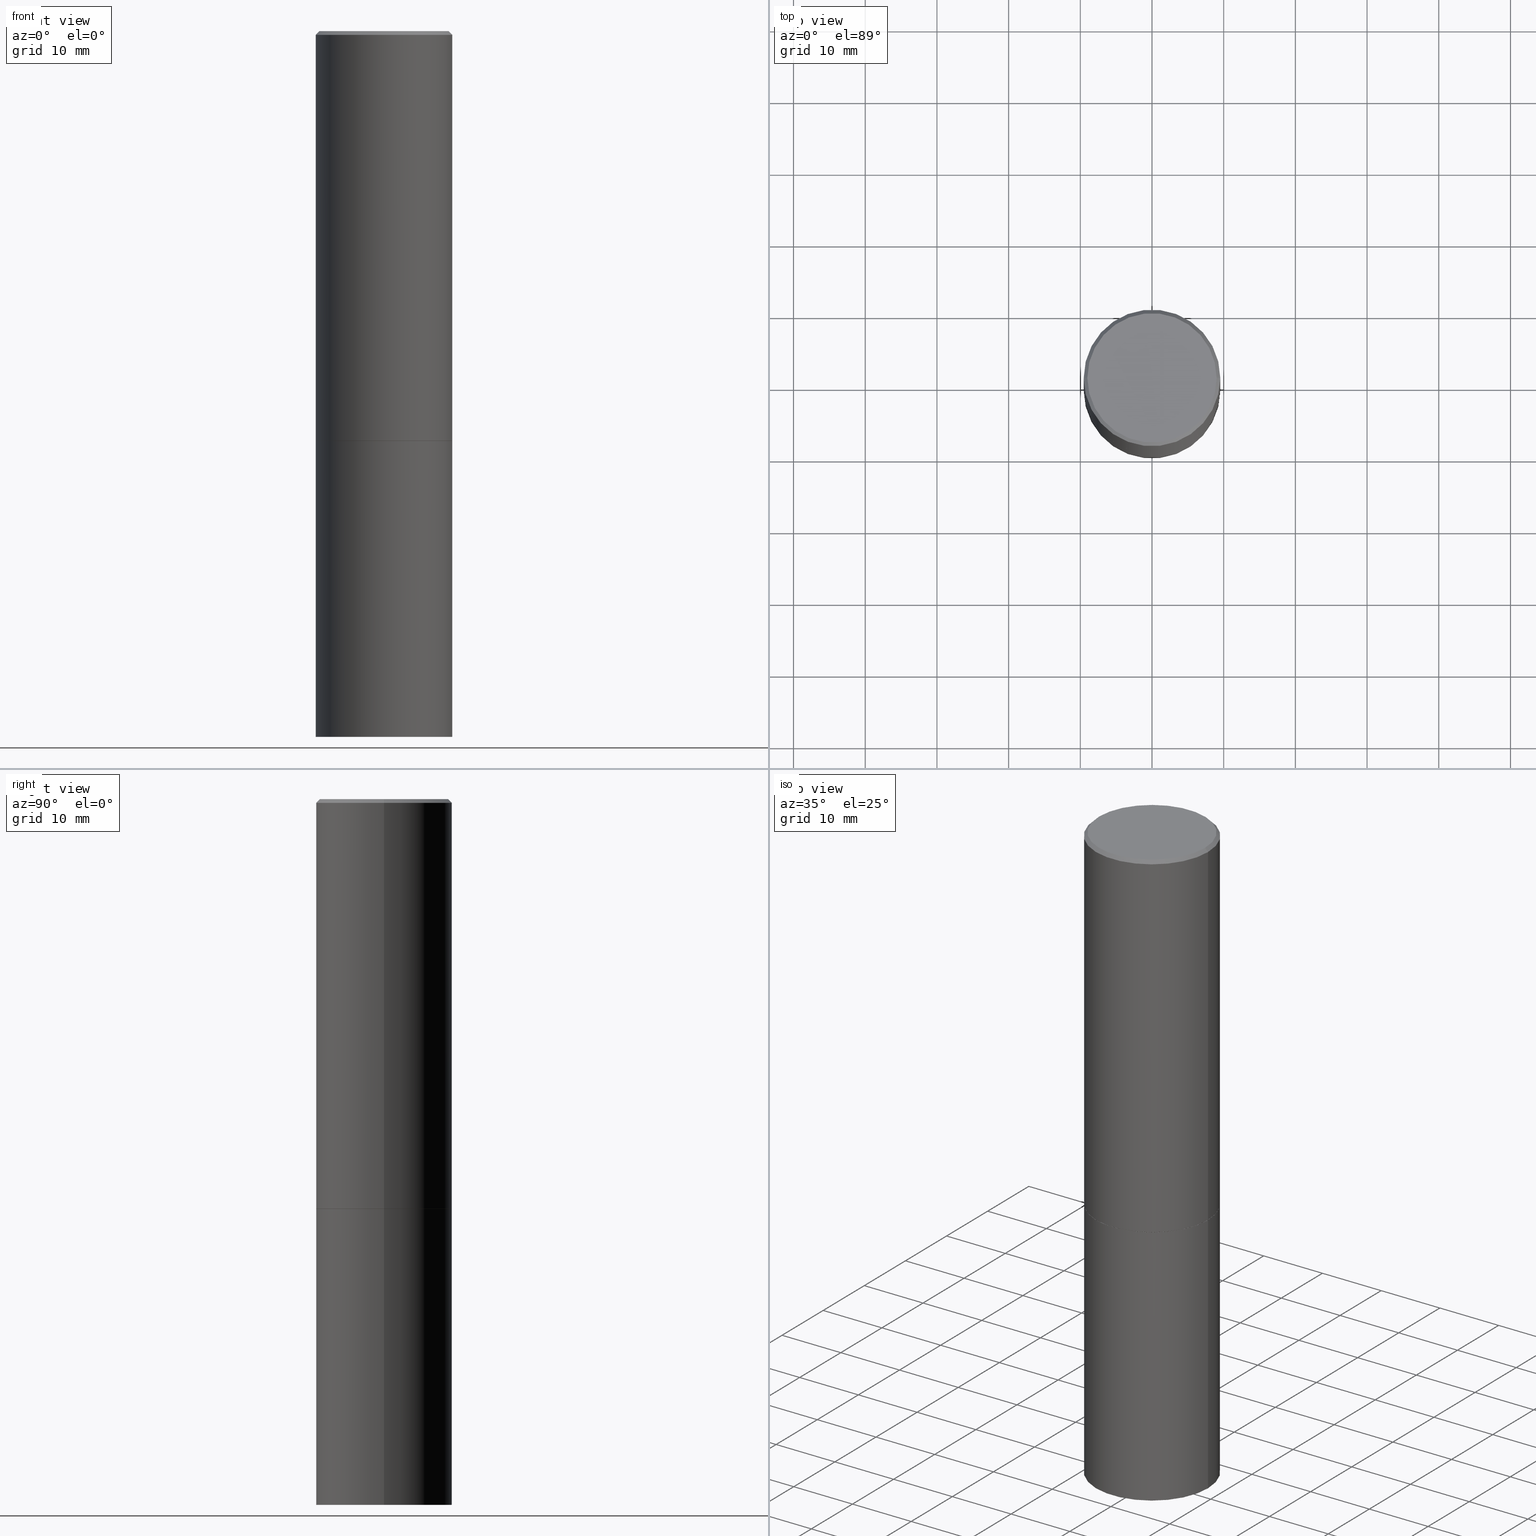
[diagram: canonical four-view strip — front | top / right | iso, engineering-drawing reading convention]
A machine part, canonical four-view strip (front | top / right | iso — engineering-drawing reading convention). The complete STEP part file that produces these views, byte-faithful:
ISO-10303-21;
HEADER;
FILE_DESCRIPTION (( 'STEP AP203' ),
    '1' );
FILE_NAME ('34525.STEP',
    '2024-02-27T16:16:03',
    ( '' ),
    ( '' ),
    'SwSTEP 2.0',
    'SolidWorks 2023',
    '' );
FILE_SCHEMA (( 'CONFIG_CONTROL_DESIGN' ));
ENDSEC;

DATA;
#1 = ADVANCED_FACE ( 'NONE', ( #127 ), #121, .T. ) ;
#2 = CC_DESIGN_SECURITY_CLASSIFICATION ( #339, ( #114 ) ) ;
#3 = ORIENTED_EDGE ( 'NONE', *, *, #103, .F. ) ;
#4 = AXIS2_PLACEMENT_3D ( 'NONE', #333, #85, #349 ) ;
#5 = DATE_TIME_ROLE ( 'classification_date' ) ;
#6 = VECTOR ( 'NONE', #130, 39.37007874015748143 ) ;
#7 = COORDINATED_UNIVERSAL_TIME_OFFSET ( 5, 0, .BEHIND. ) ;
#8 = VERTEX_POINT ( 'NONE', #70 ) ;
#9 = EDGE_LOOP ( 'NONE', ( #293, #274 ) ) ;
#10 = AXIS2_PLACEMENT_3D ( 'NONE', #60, #88, #236 ) ;
#11 = CIRCLE ( 'NONE', #139, 0.3739999999999999991 ) ;
#12 = ORIENTED_EDGE ( 'NONE', *, *, #192, .F. ) ;
#13 = APPROVAL_DATE_TIME ( #273, #359 ) ;
#14 = DIRECTION ( 'NONE',  ( -2.445468806185136597E-29, 3.491481338843145583E-15, 1.000000000000000000 ) ) ;
#15 =( CONVERSION_BASED_UNIT ( 'INCH', #302 ) LENGTH_UNIT ( ) NAMED_UNIT ( #97 ) );
#16 = EDGE_CURVE ( 'NONE', #317, #186, #321, .T. ) ;
#17 = APPROVAL_PERSON_ORGANIZATION ( #104, #311, #299 ) ;
#18 = DIRECTION ( 'NONE',  ( 0.7071067811865457964, -7.319954787623249734E-15, -0.7071067811865492381 ) ) ;
#19 = CARTESIAN_POINT ( 'NONE',  ( 0.000000000000000000, 0.000000000000000000, 0.000000000000000000 ) ) ;
#20 = PERSON_AND_ORGANIZATION_ROLE ( 'classification_officer' ) ;
#21 = ADVANCED_FACE ( 'NONE', ( #74 ), #46, .T. ) ;
#22 = LINE ( 'NONE', #53, #312 ) ;
#23 = DATE_AND_TIME ( #24, #34 ) ;
#24 = CALENDAR_DATE ( 2024, 27, 2 ) ;
#25 = AXIS2_PLACEMENT_3D ( 'NONE', #64, #227, #197 ) ;
#26 = DIRECTION ( 'NONE',  ( -2.445468806185136877E-29, 3.491481338843145188E-15, 1.000000000000000000 ) ) ;
#27 = CARTESIAN_POINT ( 'NONE',  ( -0.3749999999999997780, 2.548781377355484746E-15, -0.02000000000000008715 ) ) ;
#28 = CIRCLE ( 'NONE', #310, 0.3739999999999999991 ) ;
#29 = CARTESIAN_POINT ( 'NONE',  ( 5.502304813916557343E-29, -7.855833012397078448E-15, -2.250000000000000000 ) ) ;
#30 = DIRECTION ( 'NONE',  ( -2.445468806185136597E-29, 3.491481338843145583E-15, 1.000000000000000000 ) ) ;
#31 = CALENDAR_DATE ( 2024, 27, 2 ) ;
#32 = ADVANCED_BREP_SHAPE_REPRESENTATION ( '34525', ( #162, #35, #10 ), #107 ) ;
#33 = VECTOR ( 'NONE', #328, 39.37007874015748854 ) ;
#34 = LOCAL_TIME ( 11, 16, 3.000000000000000000, #332 ) ;
#35 = MANIFOLD_SOLID_BREP ( 'Body-Move/Copy2[2]', #45 ) ;
#36 = DIRECTION ( 'NONE',  ( 1.000000000000000000, -6.982962677686265922E-15, 0.000000000000000000 ) ) ;
#37 = DATE_TIME_ROLE ( 'creation_date' ) ;
#38 = DIRECTION ( 'NONE',  ( -2.445468806185136597E-29, 3.491481338843145583E-15, 1.000000000000000000 ) ) ;
#39 = CC_DESIGN_PERSON_AND_ORGANIZATION_ASSIGNMENT ( #54, #20, ( #339 ) ) ;
#40 = ORIENTED_EDGE ( 'NONE', *, *, #50, .T. ) ;
#41 = CARTESIAN_POINT ( 'NONE',  ( -0.3750000000000000555, -8.028126341106757280E-15, -2.250000000000000000 ) ) ;
#42 = ORIENTED_EDGE ( 'NONE', *, *, #308, .F. ) ;
#43 = VECTOR ( 'NONE', #364, 39.37007874015748854 ) ;
#44 = CIRCLE ( 'NONE', #171, 0.3549999999999997602 ) ;
#45 = CLOSED_SHELL ( 'NONE', ( #272, #283, #63, #118, #229, #1, #276, #78 ) ) ;
#46 = CYLINDRICAL_SURFACE ( 'NONE', #322, 0.3750000000000000555 ) ;
#47 = FACE_OUTER_BOUND ( 'NONE', #9, .T. ) ;
#48 = DIRECTION ( 'NONE',  ( -2.445468806185136597E-29, 3.491481338843145583E-15, 1.000000000000000000 ) ) ;
#49 = ORIENTED_EDGE ( 'NONE', *, *, #84, .F. ) ;
#50 = EDGE_CURVE ( 'NONE', #242, #8, #96, .T. ) ;
#51 = DIRECTION ( 'NONE',  ( 1.000000000000000000, -6.982962677686266711E-15, 4.876231632511991546E-29 ) ) ;
#52 = ORGANIZATION ( 'UNSPECIFIED', 'UNSPECIFIED', '' ) ;
#53 = CARTESIAN_POINT ( 'NONE',  ( 0.3749999999999997780, -2.642516375941186056E-15, -0.02000000000000008715 ) ) ;
#54 = PERSON_AND_ORGANIZATION ( #109, #52 ) ;
#55 = DIRECTION ( 'NONE',  ( -1.000000000000000000, 6.982962677686265922E-15, 0.000000000000000000 ) ) ;
#56 = CARTESIAN_POINT ( 'NONE',  ( 5.499859345110371740E-29, -7.852341531058233864E-15, -2.249000000000000110 ) ) ;
#57 = FACE_OUTER_BOUND ( 'NONE', #98, .T. ) ;
#58 = CARTESIAN_POINT ( 'NONE',  ( 0.3750000000000000555, -1.614810119214954068E-14, -3.875000000000000000 ) ) ;
#59 = APPROVAL_STATUS ( 'not_yet_approved' ) ;
#60 = CARTESIAN_POINT ( 'NONE',  ( 0.000000000000000000, 0.000000000000000000, 0.000000000000000000 ) ) ;
#61 = CARTESIAN_POINT ( 'NONE',  ( 5.499859345110371740E-29, -7.852341531058233864E-15, -2.249000000000000110 ) ) ;
#62 = AXIS2_PLACEMENT_3D ( 'NONE', #29, #169, #260 ) ;
#63 = ADVANCED_FACE ( 'NONE', ( #57 ), #137, .T. ) ;
#64 = CARTESIAN_POINT ( 'NONE',  ( 9.476191623967404313E-29, -1.352949018801718908E-14, -3.875000000000000000 ) ) ;
#65 = APPLICATION_PROTOCOL_DEFINITION ( 'international standard', 'config_control_design', 1994, #336 ) ;
#66 = ORIENTED_EDGE ( 'NONE', *, *, #163, .F. ) ;
#67 = CC_DESIGN_PERSON_AND_ORGANIZATION_ASSIGNMENT ( #149, #95, ( #114 ) ) ;
#68 = CC_DESIGN_APPROVAL ( #311, ( #339 ) ) ;
#69 = CYLINDRICAL_SURFACE ( 'NONE', #210, 0.3749999999999998890 ) ;
#70 = CARTESIAN_POINT ( 'NONE',  ( 0.3750000000000000555, -1.047444401652942689E-14, -2.250000000000000000 ) ) ;
#71 = CARTESIAN_POINT ( 'NONE',  ( 9.476191623967404313E-29, -1.352949018801718908E-14, -3.875000000000000000 ) ) ;
#72 = PERSON_AND_ORGANIZATION_ROLE ( 'design_owner' ) ;
#73 = PERSON_AND_ORGANIZATION_ROLE ( 'design_supplier' ) ;
#74 = FACE_OUTER_BOUND ( 'NONE', #354, .T. ) ;
#75 = ORIENTED_EDGE ( 'NONE', *, *, #174, .F. ) ;
#76 = DIRECTION ( 'NONE',  ( 1.000000000000000000, -6.982962677686265922E-15, 4.876176775795935793E-29 ) ) ;
#77 = CARTESIAN_POINT ( 'NONE',  ( 0.3750000000000000555, -1.047095253519058546E-14, -2.249000000000000110 ) ) ;
#78 = ADVANCED_FACE ( 'NONE', ( #80 ), #279, .F. ) ;
#79 = VECTOR ( 'NONE', #193, 39.37007874015748143 ) ;
#80 = FACE_OUTER_BOUND ( 'NONE', #291, .T. ) ;
#81 = FACE_OUTER_BOUND ( 'NONE', #145, .T. ) ;
#82 = PRODUCT ( '34525', '34525', '', ( #264 ) ) ;
#83 = LINE ( 'NONE', #257, #43 ) ;
#84 = EDGE_CURVE ( 'NONE', #209, #315, #168, .T. ) ;
#85 = DIRECTION ( 'NONE',  ( -2.438088387897960049E-29, 3.491481338843145188E-15, 1.000000000000000000 ) ) ;
#86 = ORIENTED_EDGE ( 'NONE', *, *, #151, .F. ) ;
#87 = DESIGN_CONTEXT ( 'detailed design', #277, 'design' ) ;
#88 = DIRECTION ( 'NONE',  ( 0.000000000000000000, 0.000000000000000000, 1.000000000000000000 ) ) ;
#89 = EDGE_CURVE ( 'NONE', #206, #317, #116, .T. ) ;
#90 = AXIS2_PLACEMENT_3D ( 'NONE', #158, #135, #234 ) ;
#91 = ORIENTED_EDGE ( 'NONE', *, *, #143, .T. ) ;
#92 = CIRCLE ( 'NONE', #230, 0.3750000000000000555 ) ;
#93 = ORIENTED_EDGE ( 'NONE', *, *, #192, .T. ) ;
#94 = FACE_OUTER_BOUND ( 'NONE', #182, .T. ) ;
#95 = PERSON_AND_ORGANIZATION_ROLE ( 'creator' ) ;
#96 = LINE ( 'NONE', #203, #185 ) ;
#97 = DIMENSIONAL_EXPONENTS ( 1.000000000000000000, 0.000000000000000000, 0.000000000000000000, 0.000000000000000000, 0.000000000000000000, 0.000000000000000000, 0.000000000000000000 ) ;
#98 = EDGE_LOOP ( 'NONE', ( #341, #270, #249, #173 ) ) ;
#99 = DIRECTION ( 'NONE',  ( -1.000000000000000000, 6.982962677686265922E-15, -4.876176775795935793E-29 ) ) ;
#100 = DIRECTION ( 'NONE',  ( -2.445468806185136597E-29, 3.491481338843145583E-15, 1.000000000000000000 ) ) ;
#101 = APPROVAL_DATE_TIME ( #344, #204 ) ;
#102 = ORIENTED_EDGE ( 'NONE', *, *, #217, .F. ) ;
#103 = EDGE_CURVE ( 'NONE', #156, #317, #362, .T. ) ;
#104 = PERSON_AND_ORGANIZATION ( #109, #52 ) ;
#105 = FACE_OUTER_BOUND ( 'NONE', #288, .T. ) ;
#106 = EDGE_LOOP ( 'NONE', ( #66, #42, #271, #351 ) ) ;
#107 =( GEOMETRIC_REPRESENTATION_CONTEXT ( 3 ) GLOBAL_UNCERTAINTY_ASSIGNED_CONTEXT ( ( #286 ) ) GLOBAL_UNIT_ASSIGNED_CONTEXT ( ( #15, #189, #161 ) ) REPRESENTATION_CONTEXT ( 'NONE', 'WORKASPACE' ) );
#108 = CIRCLE ( 'NONE', #199, 0.3549999999999997602 ) ;
#109 = PERSON ( 'UNSPECIFIED', 'UNSPECIFIED', 'UNSPECIFIED', ('UNSPECIFIED'), ('UNSPECIFIED'), ('UNSPECIFIED') ) ;
#110 = CARTESIAN_POINT ( 'NONE',  ( 5.502304813916557343E-29, -7.855833012397078448E-15, -2.250000000000000000 ) ) ;
#111 = CC_DESIGN_PERSON_AND_ORGANIZATION_ASSIGNMENT ( #202, #73, ( #114 ) ) ;
#112 = DIRECTION ( 'NONE',  ( 2.445468806185136597E-29, -3.491481338843145583E-15, -1.000000000000000000 ) ) ;
#113 = DIRECTION ( 'NONE',  ( -2.445468806185136597E-29, 3.491481338843145583E-15, 1.000000000000000000 ) ) ;
#114 = PRODUCT_DEFINITION_FORMATION_WITH_SPECIFIED_SOURCE ( 'ANY', '', #82, .NOT_KNOWN. ) ;
#115 = CONICAL_SURFACE ( 'NONE', #298, 0.3739999999999999991, 0.7853981633974141952 ) ;
#116 = LINE ( 'NONE', #331, #33 ) ;
#117 = CYLINDRICAL_SURFACE ( 'NONE', #255, 0.3749999999999998890 ) ;
#118 = ADVANCED_FACE ( 'NONE', ( #220 ), #172, .T. ) ;
#119 = ORIENTED_EDGE ( 'NONE', *, *, #314, .T. ) ;
#120 = EDGE_LOOP ( 'NONE', ( #196, #178, #208, #154 ) ) ;
#121 = CONICAL_SURFACE ( 'NONE', #284, 0.3739999999999999991, 0.7853981633974141952 ) ;
#122 = CALENDAR_DATE ( 2024, 27, 2 ) ;
#123 = CARTESIAN_POINT ( 'NONE',  ( 0.000000000000000000, 0.000000000000000000, 0.000000000000000000 ) ) ;
#124 = DIRECTION ( 'NONE',  ( 2.438088387897960049E-29, -3.491481338843145188E-15, -1.000000000000000000 ) ) ;
#125 = VERTEX_POINT ( 'NONE', #324 ) ;
#126 = AXIS2_PLACEMENT_3D ( 'NONE', #56, #190, #134 ) ;
#127 = FACE_OUTER_BOUND ( 'NONE', #200, .T. ) ;
#128 = DIRECTION ( 'NONE',  ( -2.445468806185136597E-29, 3.491481338843145583E-15, 1.000000000000000000 ) ) ;
#129 = ORIENTED_EDGE ( 'NONE', *, *, #89, .T. ) ;
#130 = DIRECTION ( 'NONE',  ( -2.445468806185136877E-29, 3.491481338843145188E-15, 1.000000000000000000 ) ) ;
#131 = CC_DESIGN_APPROVAL ( #204, ( #114 ) ) ;
#132 = ADVANCED_FACE ( 'NONE', ( #81 ), #164, .T. ) ;
#133 = CARTESIAN_POINT ( 'NONE',  ( -0.3750000000000000555, -8.028126341106757280E-15, -3.875000000000000000 ) ) ;
#134 = DIRECTION ( 'NONE',  ( 1.000000000000000000, -6.982962677686266711E-15, 0.000000000000000000 ) ) ;
#135 = DIRECTION ( 'NONE',  ( -2.445468806185136597E-29, 3.491481338843145583E-15, 1.000000000000000000 ) ) ;
#136 = CARTESIAN_POINT ( 'NONE',  ( 4.890937612370294178E-31, -6.982962677686321191E-17, -0.02000000000000008715 ) ) ;
#137 = CONICAL_SURFACE ( 'NONE', #356, 0.3749999999999997780, 0.7853981633974458365 ) ;
#138 = CIRCLE ( 'NONE', #146, 0.3750000000000000555 ) ;
#139 = AXIS2_PLACEMENT_3D ( 'NONE', #250, #360, #159 ) ;
#140 = DIRECTION ( 'NONE',  ( 1.000000000000000000, -6.982962677686268288E-15, 0.000000000000000000 ) ) ;
#141 = DIRECTION ( 'NONE',  ( -2.445468806185136597E-29, 3.491481338843145583E-15, 1.000000000000000000 ) ) ;
#142 = DATE_AND_TIME ( #31, #224 ) ;
#143 = EDGE_CURVE ( 'NONE', #125, #144, #108, .T. ) ;
#144 = VERTEX_POINT ( 'NONE', #281 ) ;
#145 = EDGE_LOOP ( 'NONE', ( #49, #119, #40, #246 ) ) ;
#146 = AXIS2_PLACEMENT_3D ( 'NONE', #71, #48, #181 ) ;
#147 = EDGE_LOOP ( 'NONE', ( #337, #129, #3, #12 ) ) ;
#148 = CARTESIAN_POINT ( 'NONE',  ( -0.3749999999999998890, 2.664535259100374908E-15, -1.844600658845589038E-29 ) ) ;
#149 = PERSON_AND_ORGANIZATION ( #109, #52 ) ;
#150 = VERTEX_POINT ( 'NONE', #253 ) ;
#151 = EDGE_CURVE ( 'NONE', #156, #233, #275, .T. ) ;
#152 = APPROVAL_STATUS ( 'not_yet_approved' ) ;
#153 = CLOSED_SHELL ( 'NONE', ( #21, #342, #292, #132 ) ) ;
#154 = ORIENTED_EDGE ( 'NONE', *, *, #330, .F. ) ;
#155 = CC_DESIGN_APPROVAL ( #359, ( #188 ) ) ;
#156 = VERTEX_POINT ( 'NONE', #77 ) ;
#157 = CARTESIAN_POINT ( 'NONE',  ( 2.478951750578623026E-15, 0.3549999999999997602, -1.237341619044265638E-15 ) ) ;
#158 = CARTESIAN_POINT ( 'NONE',  ( 4.890937612370294178E-31, -6.982962677686321191E-17, -0.02000000000000008715 ) ) ;
#159 = DIRECTION ( 'NONE',  ( 1.000000000000000000, -6.982962677686268288E-15, 0.000000000000000000 ) ) ;
#160 = CARTESIAN_POINT ( 'NONE',  ( 0.3749999999999998890, -2.618611004132349228E-15, 1.828566290923475362E-29 ) ) ;
#161 =( NAMED_UNIT ( * ) SI_UNIT ( $, .STERADIAN. ) SOLID_ANGLE_UNIT ( ) );
#162 = MANIFOLD_SOLID_BREP ( 'Body-Move/Copy2[1]', #153 ) ;
#163 = EDGE_CURVE ( 'NONE', #125, #233, #22, .T. ) ;
#164 = CYLINDRICAL_SURFACE ( 'NONE', #211, 0.3750000000000000555 ) ;
#165 = CIRCLE ( 'NONE', #62, 0.3750000000000000555 ) ;
#166 = AXIS2_PLACEMENT_3D ( 'NONE', #251, #348, #99 ) ;
#167 = AXIS2_PLACEMENT_3D ( 'NONE', #157, #214, #307 ) ;
#168 = LINE ( 'NONE', #303, #79 ) ;
#169 = DIRECTION ( 'NONE',  ( -2.445468806185136597E-29, 3.491481338843145583E-15, 1.000000000000000000 ) ) ;
#170 = SHAPE_DEFINITION_REPRESENTATION ( #365, #32 ) ;
#171 = AXIS2_PLACEMENT_3D ( 'NONE', #346, #300, #318 ) ;
#172 = CONICAL_SURFACE ( 'NONE', #232, 0.3749999999999997780, 0.7853981633974458365 ) ;
#173 = ORIENTED_EDGE ( 'NONE', *, *, #212, .F. ) ;
#174 = EDGE_CURVE ( 'NONE', #206, #150, #28, .T. ) ;
#175 = PLANE ( 'NONE',  #340 ) ;
#176 = CIRCLE ( 'NONE', #256, 0.3749999999999997780 ) ;
#177 = COORDINATED_UNIVERSAL_TIME_OFFSET ( 5, 0, .BEHIND. ) ;
#178 = ORIENTED_EDGE ( 'NONE', *, *, #266, .T. ) ;
#179 = CARTESIAN_POINT ( 'NONE',  ( 0.000000000000000000, 0.000000000000000000, 0.000000000000000000 ) ) ;
#180 = DIRECTION ( 'NONE',  ( -2.445468806185136877E-29, 3.491481338843145188E-15, 1.000000000000000000 ) ) ;
#181 = DIRECTION ( 'NONE',  ( 1.000000000000000000, -6.982962677686266711E-15, 0.000000000000000000 ) ) ;
#182 = EDGE_LOOP ( 'NONE', ( #295, #265 ) ) ;
#183 = CIRCLE ( 'NONE', #243, 0.3750000000000000555 ) ;
#184 = ORIENTED_EDGE ( 'NONE', *, *, #247, .F. ) ;
#185 = VECTOR ( 'NONE', #180, 39.37007874015748143 ) ;
#186 = VERTEX_POINT ( 'NONE', #27 ) ;
#187 = CARTESIAN_POINT ( 'NONE',  ( -0.3739999999999999991, -5.193104726306080569E-15, -2.250000000000000000 ) ) ;
#188 = PRODUCT_DEFINITION ( 'UNKNOWN', '', #114, #87 ) ;
#189 =( NAMED_UNIT ( * ) PLANE_ANGLE_UNIT ( ) SI_UNIT ( $, .RADIAN. ) );
#190 = DIRECTION ( 'NONE',  ( -2.445468806185136597E-29, 3.491481338843145583E-15, 1.000000000000000000 ) ) ;
#191 = DIRECTION ( 'NONE',  ( 1.000000000000000000, -6.982962677686264344E-15, 0.000000000000000000 ) ) ;
#192 = EDGE_CURVE ( 'NONE', #150, #156, #83, .T. ) ;
#193 = DIRECTION ( 'NONE',  ( -2.445468806185136877E-29, 3.491481338843145188E-15, 1.000000000000000000 ) ) ;
#194 = DIRECTION ( 'NONE',  ( -1.000000000000000000, 6.982962677686265922E-15, 0.000000000000000000 ) ) ;
#195 = CC_DESIGN_DATE_AND_TIME_ASSIGNMENT ( #357, #37, ( #188 ) ) ;
#196 = ORIENTED_EDGE ( 'NONE', *, *, #16, .F. ) ;
#197 = DIRECTION ( 'NONE',  ( 1.000000000000000000, -6.982962677686266711E-15, 0.000000000000000000 ) ) ;
#198 = VECTOR ( 'NONE', #26, 39.37007874015748143 ) ;
#199 = AXIS2_PLACEMENT_3D ( 'NONE', #309, #113, #51 ) ;
#200 = EDGE_LOOP ( 'NONE', ( #285, #335, #93, #297 ) ) ;
#201 = DIRECTION ( 'NONE',  ( -1.000000000000000000, 6.982962677686265922E-15, -4.876176775795935793E-29 ) ) ;
#202 = PERSON_AND_ORGANIZATION ( #109, #52 ) ;
#203 = CARTESIAN_POINT ( 'NONE',  ( 0.3750000000000000555, -2.618611004132350016E-15, 1.828566290923476203E-29 ) ) ;
#204 = APPROVAL ( #323, 'UNSPECIFIED' ) ;
#205 = PERSON_AND_ORGANIZATION ( #109, #52 ) ;
#206 = VERTEX_POINT ( 'NONE', #187 ) ;
#207 = CALENDAR_DATE ( 2024, 27, 2 ) ;
#208 = ORIENTED_EDGE ( 'NONE', *, *, #151, .T. ) ;
#209 = VERTEX_POINT ( 'NONE', #133 ) ;
#210 = AXIS2_PLACEMENT_3D ( 'NONE', #179, #128, #238 ) ;
#211 = AXIS2_PLACEMENT_3D ( 'NONE', #216, #280, #76 ) ;
#212 = EDGE_CURVE ( 'NONE', #144, #186, #215, .T. ) ;
#213 = APPLICATION_PROTOCOL_DEFINITION ( 'international standard', 'config_control_design', 1994, #277 ) ;
#214 = DIRECTION ( 'NONE',  ( 2.438088387897960049E-29, -3.491481338843145188E-15, -1.000000000000000000 ) ) ;
#215 = LINE ( 'NONE', #254, #219 ) ;
#216 = CARTESIAN_POINT ( 'NONE',  ( 0.000000000000000000, 0.000000000000000000, 0.000000000000000000 ) ) ;
#217 = EDGE_CURVE ( 'NONE', #150, #206, #11, .T. ) ;
#218 = LOCAL_TIME ( 11, 16, 3.000000000000000000, #350 ) ;
#219 = VECTOR ( 'NONE', #305, 39.37007874015748143 ) ;
#220 = FACE_OUTER_BOUND ( 'NONE', #106, .T. ) ;
#221 = DIRECTION ( 'NONE',  ( 1.000000000000000000, -6.982962677686266711E-15, 4.876176775795935793E-29 ) ) ;
#222 = APPROVAL_DATE_TIME ( #142, #311 ) ;
#223 = FACE_OUTER_BOUND ( 'NONE', #147, .T. ) ;
#224 = LOCAL_TIME ( 11, 16, 3.000000000000000000, #329 ) ;
#225 = CC_DESIGN_PERSON_AND_ORGANIZATION_ASSIGNMENT ( #294, #248, ( #188 ) ) ;
#226 = ORIENTED_EDGE ( 'NONE', *, *, #103, .T. ) ;
#227 = DIRECTION ( 'NONE',  ( -2.445468806185136597E-29, 3.491481338843145583E-15, 1.000000000000000000 ) ) ;
#228 = ORIENTED_EDGE ( 'NONE', *, *, #308, .T. ) ;
#229 = ADVANCED_FACE ( 'NONE', ( #278 ), #117, .T. ) ;
#230 = AXIS2_PLACEMENT_3D ( 'NONE', #61, #30, #261 ) ;
#231 = DIRECTION ( 'NONE',  ( -2.445468806185136597E-29, 3.491481338843145583E-15, 1.000000000000000000 ) ) ;
#232 = AXIS2_PLACEMENT_3D ( 'NONE', #306, #112, #55 ) ;
#233 = VERTEX_POINT ( 'NONE', #327 ) ;
#234 = DIRECTION ( 'NONE',  ( 1.000000000000000000, -6.982962677686265922E-15, 0.000000000000000000 ) ) ;
#235 = CARTESIAN_POINT ( 'NONE',  ( 2.618611004132404842E-15, 0.3749999999999921729, -2.250000000000001332 ) ) ;
#236 = DIRECTION ( 'NONE',  ( 1.000000000000000000, 0.000000000000000000, 0.000000000000000000 ) ) ;
#237 = EDGE_CURVE ( 'NONE', #315, #8, #183, .T. ) ;
#238 = DIRECTION ( 'NONE',  ( 1.000000000000000000, -6.982962677686266711E-15, 4.876176775795935793E-29 ) ) ;
#239 = CALENDAR_DATE ( 2024, 27, 2 ) ;
#240 = DIRECTION ( 'NONE',  ( 1.000000000000000000, -6.982962677686265922E-15, 4.876176775795935793E-29 ) ) ;
#241 = CIRCLE ( 'NONE', #90, 0.3749999999999997780 ) ;
#242 = VERTEX_POINT ( 'NONE', #58 ) ;
#243 = AXIS2_PLACEMENT_3D ( 'NONE', #258, #366, #191 ) ;
#244 = CARTESIAN_POINT ( 'NONE',  ( -0.3750000000000000555, -1.296550319817170517E-15, -2.249000000000000110 ) ) ;
#245 = EDGE_LOOP ( 'NONE', ( #102, #75 ) ) ;
#246 = ORIENTED_EDGE ( 'NONE', *, *, #237, .F. ) ;
#247 = EDGE_CURVE ( 'NONE', #8, #315, #165, .T. ) ;
#248 = PERSON_AND_ORGANIZATION_ROLE ( 'creator' ) ;
#249 = ORIENTED_EDGE ( 'NONE', *, *, #319, .T. ) ;
#250 = CARTESIAN_POINT ( 'NONE',  ( 5.502304813916557343E-29, -7.855833012397078448E-15, -2.250000000000000000 ) ) ;
#251 = CARTESIAN_POINT ( 'NONE',  ( 2.618611004132444680E-15, 0.3749999999999865108, -3.875000000000001332 ) ) ;
#252 = PRODUCT_RELATED_PRODUCT_CATEGORY ( 'detail', '', ( #82 ) ) ;
#253 = CARTESIAN_POINT ( 'NONE',  ( 0.3739999999999999991, -1.046746105385174245E-14, -2.250000000000000000 ) ) ;
#254 = CARTESIAN_POINT ( 'NONE',  ( -0.3749999999999997780, 2.548781377355484746E-15, -0.02000000000000008715 ) ) ;
#255 = AXIS2_PLACEMENT_3D ( 'NONE', #19, #141, #221 ) ;
#256 = AXIS2_PLACEMENT_3D ( 'NONE', #343, #100, #36 ) ;
#257 = CARTESIAN_POINT ( 'NONE',  ( 0.3739999999999999991, -1.046746105385174245E-14, -2.250000000000000000 ) ) ;
#258 = CARTESIAN_POINT ( 'NONE',  ( 5.502304813916557343E-29, -7.855833012397078448E-15, -2.250000000000000000 ) ) ;
#259 = CC_DESIGN_PERSON_AND_ORGANIZATION_ASSIGNMENT ( #205, #72, ( #82 ) ) ;
#260 = DIRECTION ( 'NONE',  ( 1.000000000000000000, -6.982962677686264344E-15, 0.000000000000000000 ) ) ;
#261 = DIRECTION ( 'NONE',  ( 1.000000000000000000, -6.982962677686266711E-15, 0.000000000000000000 ) ) ;
#262 = EDGE_CURVE ( 'NONE', #242, #209, #338, .T. ) ;
#263 = ORIENTED_EDGE ( 'NONE', *, *, #16, .T. ) ;
#264 = MECHANICAL_CONTEXT ( 'NONE', #336, 'mechanical' ) ;
#265 = ORIENTED_EDGE ( 'NONE', *, *, #237, .T. ) ;
#266 = EDGE_CURVE ( 'NONE', #317, #156, #92, .T. ) ;
#267 = APPROVAL_ROLE ( '' ) ;
#268 = ORIENTED_EDGE ( 'NONE', *, *, #50, .F. ) ;
#269 = PERSON_AND_ORGANIZATION ( #109, #52 ) ;
#270 = ORIENTED_EDGE ( 'NONE', *, *, #163, .T. ) ;
#271 = ORIENTED_EDGE ( 'NONE', *, *, #212, .T. ) ;
#272 = ADVANCED_FACE ( 'NONE', ( #223 ), #115, .T. ) ;
#273 = DATE_AND_TIME ( #207, #290 ) ;
#274 = ORIENTED_EDGE ( 'NONE', *, *, #314, .F. ) ;
#275 = LINE ( 'NONE', #160, #198 ) ;
#276 = ADVANCED_FACE ( 'NONE', ( #313 ), #289, .F. ) ;
#277 = APPLICATION_CONTEXT ( 'configuration controlled 3d designs of mechanical parts and assemblies' ) ;
#278 = FACE_OUTER_BOUND ( 'NONE', #120, .T. ) ;
#279 = PLANE ( 'NONE',  #167 ) ;
#280 = DIRECTION ( 'NONE',  ( -2.445468806185136597E-29, 3.491481338843145583E-15, 1.000000000000000000 ) ) ;
#281 = CARTESIAN_POINT ( 'NONE',  ( -0.3549999999999997602, 2.513866563967053491E-15, 4.268512490082953109E-18 ) ) ;
#282 = DIRECTION ( 'NONE',  ( 1.000000000000000000, -6.982962677686268288E-15, 0.000000000000000000 ) ) ;
#283 = ADVANCED_FACE ( 'NONE', ( #105 ), #69, .T. ) ;
#284 = AXIS2_PLACEMENT_3D ( 'NONE', #110, #14, #345 ) ;
#285 = ORIENTED_EDGE ( 'NONE', *, *, #89, .F. ) ;
#286 = UNCERTAINTY_MEASURE_WITH_UNIT (LENGTH_MEASURE( 1.000000000000000082E-05 ), #15, 'distance_accuracy_value', 'NONE');
#287 = CARTESIAN_POINT ( 'NONE',  ( 5.502304813916557343E-29, -7.855833012397078448E-15, -2.250000000000000000 ) ) ;
#288 = EDGE_LOOP ( 'NONE', ( #226, #263, #347, #86 ) ) ;
#289 = PLANE ( 'NONE',  #4 ) ;
#290 = LOCAL_TIME ( 11, 16, 3.000000000000000000, #177 ) ;
#291 = EDGE_LOOP ( 'NONE', ( #228, #91 ) ) ;
#292 = ADVANCED_FACE ( 'NONE', ( #94 ), #175, .F. ) ;
#293 = ORIENTED_EDGE ( 'NONE', *, *, #262, .F. ) ;
#294 = PERSON_AND_ORGANIZATION ( #109, #52 ) ;
#295 = ORIENTED_EDGE ( 'NONE', *, *, #247, .T. ) ;
#296 = APPROVAL_PERSON_ORGANIZATION ( #353, #359, #320 ) ;
#297 = ORIENTED_EDGE ( 'NONE', *, *, #266, .F. ) ;
#298 = AXIS2_PLACEMENT_3D ( 'NONE', #287, #231, #282 ) ;
#299 = APPROVAL_ROLE ( '' ) ;
#300 = DIRECTION ( 'NONE',  ( -2.445468806185136597E-29, 3.491481338843145583E-15, 1.000000000000000000 ) ) ;
#301 = ORIENTED_EDGE ( 'NONE', *, *, #262, .T. ) ;
#302 = LENGTH_MEASURE_WITH_UNIT ( LENGTH_MEASURE( 0.02539999999999999897 ), #355 );
#303 = CARTESIAN_POINT ( 'NONE',  ( -0.3750000000000000555, 2.664535259100376091E-15, -1.844600658845589598E-29 ) ) ;
#304 = LOCAL_TIME ( 11, 16, 3.000000000000000000, #7 ) ;
#305 = DIRECTION ( 'NONE',  ( -0.7071067811865457964, 2.468850131082238917E-15, -0.7071067811865492381 ) ) ;
#306 = CARTESIAN_POINT ( 'NONE',  ( 4.890937612370294178E-31, -6.982962677686321191E-17, -0.02000000000000008715 ) ) ;
#307 = DIRECTION ( 'NONE',  ( -1.000000000000000000, 6.982962677686265922E-15, -4.876176775795935793E-29 ) ) ;
#308 = EDGE_CURVE ( 'NONE', #144, #125, #44, .T. ) ;
#309 = CARTESIAN_POINT ( 'NONE',  ( -1.043851414335219820E-46, 1.490343170380447200E-32, 4.268512490100411279E-18 ) ) ;
#310 = AXIS2_PLACEMENT_3D ( 'NONE', #363, #361, #140 ) ;
#311 = APPROVAL ( #59, 'UNSPECIFIED' ) ;
#312 = VECTOR ( 'NONE', #18, 39.37007874015748143 ) ;
#313 = FACE_OUTER_BOUND ( 'NONE', #245, .T. ) ;
#314 = EDGE_CURVE ( 'NONE', #209, #242, #138, .T. ) ;
#315 = VERTEX_POINT ( 'NONE', #41 ) ;
#316 = SECURITY_CLASSIFICATION_LEVEL ( 'unclassified' ) ;
#317 = VERTEX_POINT ( 'NONE', #244 ) ;
#318 = DIRECTION ( 'NONE',  ( 1.000000000000000000, -6.982962677686266711E-15, 4.876231632511991546E-29 ) ) ;
#319 = EDGE_CURVE ( 'NONE', #233, #186, #176, .T. ) ;
#320 = APPROVAL_ROLE ( '' ) ;
#321 = LINE ( 'NONE', #148, #6 ) ;
#322 = AXIS2_PLACEMENT_3D ( 'NONE', #123, #38, #240 ) ;
#323 = APPROVAL_STATUS ( 'not_yet_approved' ) ;
#324 = CARTESIAN_POINT ( 'NONE',  ( 0.3549999999999997602, -2.538996582575039076E-15, 4.268512490117958041E-18 ) ) ;
#325 = DIRECTION ( 'NONE',  ( 2.445468806185136597E-29, -3.491481338843145583E-15, -1.000000000000000000 ) ) ;
#326 = APPROVAL_PERSON_ORGANIZATION ( #269, #204, #267 ) ;
#327 = CARTESIAN_POINT ( 'NONE',  ( 0.3749999999999997780, -2.642516375941186056E-15, -0.02000000000000008715 ) ) ;
#328 = DIRECTION ( 'NONE',  ( -0.7071067811865232589, 7.493145998870265808E-15, 0.7071067811865715536 ) ) ;
#329 = COORDINATED_UNIVERSAL_TIME_OFFSET ( 5, 0, .BEHIND. ) ;
#330 = EDGE_CURVE ( 'NONE', #186, #233, #241, .T. ) ;
#331 = CARTESIAN_POINT ( 'NONE',  ( -0.3739999999999999991, -5.198403180654302971E-15, -2.250000000000000000 ) ) ;
#332 = COORDINATED_UNIVERSAL_TIME_OFFSET ( 5, 0, .BEHIND. ) ;
#333 = CARTESIAN_POINT ( 'NONE',  ( 5.502304813916557343E-29, -7.855833012397078448E-15, -2.250000000000000000 ) ) ;
#334 = CC_DESIGN_DATE_AND_TIME_ASSIGNMENT ( #23, #5, ( #339 ) ) ;
#335 = ORIENTED_EDGE ( 'NONE', *, *, #174, .T. ) ;
#336 = APPLICATION_CONTEXT ( 'configuration controlled 3d designs of mechanical parts and assemblies' ) ;
#337 = ORIENTED_EDGE ( 'NONE', *, *, #217, .T. ) ;
#338 = CIRCLE ( 'NONE', #25, 0.3750000000000000555 ) ;
#339 = SECURITY_CLASSIFICATION ( '', '', #316 ) ;
#340 = AXIS2_PLACEMENT_3D ( 'NONE', #235, #124, #201 ) ;
#341 = ORIENTED_EDGE ( 'NONE', *, *, #143, .F. ) ;
#342 = ADVANCED_FACE ( 'NONE', ( #47 ), #352, .T. ) ;
#343 = CARTESIAN_POINT ( 'NONE',  ( 4.890937612370294178E-31, -6.982962677686321191E-17, -0.02000000000000008715 ) ) ;
#344 = DATE_AND_TIME ( #239, #304 ) ;
#345 = DIRECTION ( 'NONE',  ( 1.000000000000000000, -6.982962677686268288E-15, 0.000000000000000000 ) ) ;
#346 = CARTESIAN_POINT ( 'NONE',  ( -1.043851414335219820E-46, 1.490343170380447200E-32, 4.268512490100411279E-18 ) ) ;
#347 = ORIENTED_EDGE ( 'NONE', *, *, #319, .F. ) ;
#348 = DIRECTION ( 'NONE',  ( 2.438088387897960049E-29, -3.491481338843145188E-15, -1.000000000000000000 ) ) ;
#349 = DIRECTION ( 'NONE',  ( 1.000000000000000000, -6.982962677686265922E-15, 4.876176775795935793E-29 ) ) ;
#350 = COORDINATED_UNIVERSAL_TIME_OFFSET ( 5, 0, .BEHIND. ) ;
#351 = ORIENTED_EDGE ( 'NONE', *, *, #330, .T. ) ;
#352 = PLANE ( 'NONE',  #166 ) ;
#353 = PERSON_AND_ORGANIZATION ( #109, #52 ) ;
#354 = EDGE_LOOP ( 'NONE', ( #301, #358, #184, #268 ) ) ;
#355 =( LENGTH_UNIT ( ) NAMED_UNIT ( * ) SI_UNIT ( $, .METRE. ) );
#356 = AXIS2_PLACEMENT_3D ( 'NONE', #136, #325, #194 ) ;
#357 = DATE_AND_TIME ( #122, #218 ) ;
#358 = ORIENTED_EDGE ( 'NONE', *, *, #84, .T. ) ;
#359 = APPROVAL ( #152, 'UNSPECIFIED' ) ;
#360 = DIRECTION ( 'NONE',  ( -2.445468806185136597E-29, 3.491481338843145583E-15, 1.000000000000000000 ) ) ;
#361 = DIRECTION ( 'NONE',  ( -2.445468806185136597E-29, 3.491481338843145583E-15, 1.000000000000000000 ) ) ;
#362 = CIRCLE ( 'NONE', #126, 0.3750000000000000555 ) ;
#363 = CARTESIAN_POINT ( 'NONE',  ( 5.502304813916557343E-29, -7.855833012397078448E-15, -2.250000000000000000 ) ) ;
#364 = DIRECTION ( 'NONE',  ( 0.7071067811865232589, -2.468850131082003836E-15, 0.7071067811865715536 ) ) ;
#365 = PRODUCT_DEFINITION_SHAPE ( 'NONE', 'NONE',  #188 ) ;
#366 = DIRECTION ( 'NONE',  ( -2.445468806185136597E-29, 3.491481338843145583E-15, 1.000000000000000000 ) ) ;
ENDSEC;
END-ISO-10303-21;
